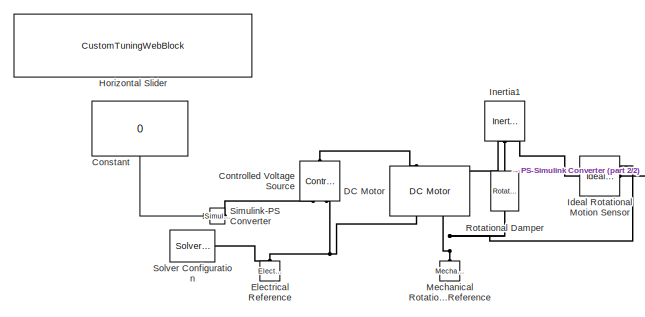
[diagram: root canvas - part 1/2, top left region]
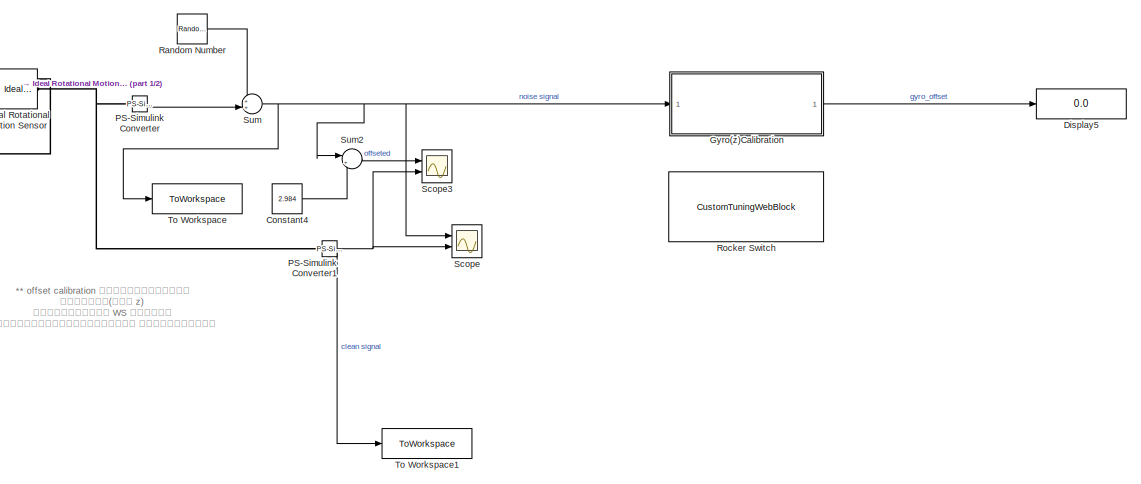
[diagram: root canvas - part 2/2, right side, full height]
MODEL slx_ea1697455849
KIND model
CONFIG AbsTol = auto
CONFIG EnableMultiTasking = off
CONFIG FixedStep = auto
CONFIG MaxStep = auto
CONFIG MinStep = auto
CONFIG RelTol = 1e-3
CONFIG SampleTimeConstraint = Unconstrained
CONFIG SolverName = VariableStepAuto
CONFIG StartTime = 0.0
CONFIG StopTime = 11
BLOCK [Constant] Constant
  NameLocation = left
  Value = 0
BLOCK [Constant] Constant4
  Value = 2.984
BLOCK [Reference] Controlled Voltage Source  REF=fl_lib/Electrical/Electrical Sources/Controlled Voltage
Source
  NameLocation = right
  Ports = [0, 0, 0, 0, 0, 1, 2]
  SourceBlock = fl_lib/Electrical/Electrical Sources/Controlled Voltage\nSource
  SourceProductBaseCode = SS
  SourceType = Controlled Voltage\nSource
BLOCK [Reference] DC Motor  REF=ee_lib/Electromechanical/Brushed Motors/DC Motor
  NameLocation = right
  Ports = [0, 0, 0, 0, 0, 2, 2]
  SourceBlock = ee_lib/Electromechanical/Brushed Motors/DC Motor
  SourceProductBaseCode = PS
  SourceType = DC Motor
BLOCK [Display] Display5
  Decimation = 1
  Ports = [1]
BLOCK [Reference] Electrical Reference  REF=fl_lib/Electrical/Electrical Elements/Electrical Reference
  NameLocation = right
  Ports = [0, 0, 0, 0, 0, 1]
  SourceBlock = fl_lib/Electrical/Electrical Elements/Electrical Reference
  SourceProductBaseCode = SS
  SourceType = Electrical Reference
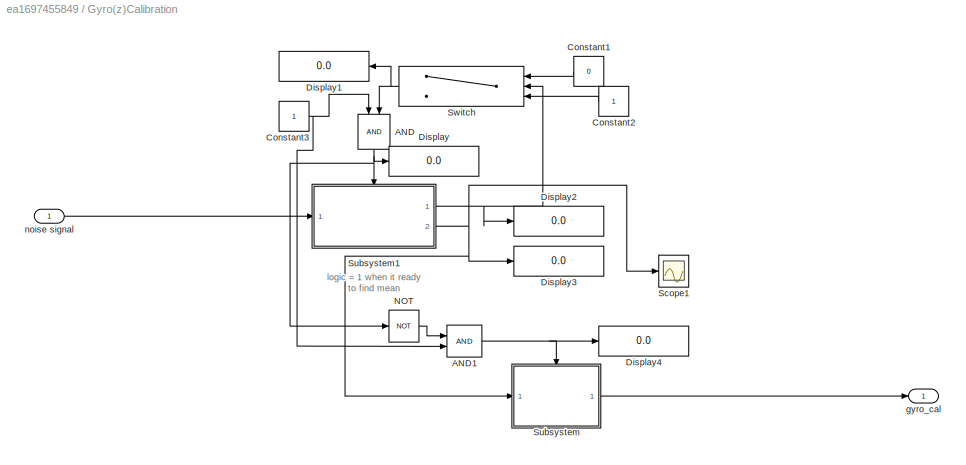
BLOCK [SubSystem] Gyro(z)Calibration
  Ports = [1, 1]
  RequestExecContextInheritance = off
BLOCK [Logic] Gyro(z)Calibration/AND
  AllPortsSameDT = off
  IconShape = distinctive
  NameLocation = left
  OutDataTypeStr = boolean
  Ports = [2, 1]
BLOCK [Logic] Gyro(z)Calibration/AND1
  AllPortsSameDT = off
  IconShape = distinctive
  OutDataTypeStr = boolean
  Ports = [2, 1]
BLOCK [Constant] Gyro(z)Calibration/Constant1
  NameLocation = top
  Value = 0
BLOCK [Constant] Gyro(z)Calibration/Constant2
  NameLocation = top
BLOCK [Constant] Gyro(z)Calibration/Constant3
BLOCK [Display] Gyro(z)Calibration/Display
  Decimation = 1
  Ports = [1]
BLOCK [Display] Gyro(z)Calibration/Display1
  Decimation = 1
  NameLocation = top
  Ports = [1]
BLOCK [Display] Gyro(z)Calibration/Display2
  Decimation = 1
  Ports = [1]
BLOCK [Display] Gyro(z)Calibration/Display3
  Decimation = 1
  Ports = [1]
BLOCK [Display] Gyro(z)Calibration/Display4
  Decimation = 1
  Ports = [1]
BLOCK [Logic] Gyro(z)Calibration/NOT
  AllPortsSameDT = off
  IconShape = distinctive
  Operator = NOT
  OutDataTypeStr = boolean
  Ports = [1, 1]
BLOCK [Scope] Gyro(z)Calibration/Scope1
  Floating = off
  NumInputPorts = 1
  Ports = [1]
  ScopeSpecificationString = Simulink.scopes.TimeScopeBlockCfg('CurrentConfiguration', extmgr.ConfigurationSet(extmgr.Configuration('Core','General UI',true),extmgr.Configuration('Core','Source UI',true),extmgr.Configuration('Sources','WiredSimulink',true,'DataLoggingVariableName','ScopeData1'),extmgr.Configuration('Visuals','Time Domain',true,'SerializedDisplays',{struct('MinYLimReal','-653.32347','MaxYLimReal','5879.9112','...<+1414ch>
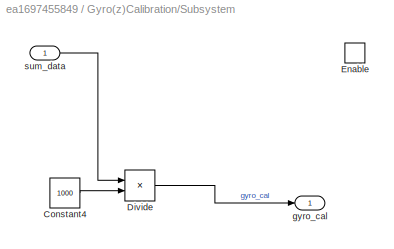
BLOCK [SubSystem] Gyro(z)Calibration/Subsystem
  Ports = [1, 1, 1]
  RequestExecContextInheritance = off
BLOCK [Constant] Gyro(z)Calibration/Subsystem/Constant4
  Value = 1000
BLOCK [Product] Gyro(z)Calibration/Subsystem/Divide
  Inputs = */
  Ports = [2, 1]
BLOCK [EnablePort] Gyro(z)Calibration/Subsystem/Enable
  Ports = []
BLOCK [Outport] Gyro(z)Calibration/Subsystem/gyro_cal
BLOCK [Inport] Gyro(z)Calibration/Subsystem/sum_data
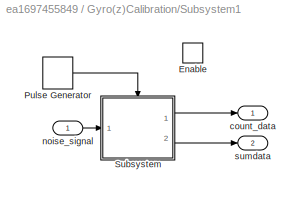
BLOCK [SubSystem] Gyro(z)Calibration/Subsystem1
  Ports = [1, 2, 1]
  RequestExecContextInheritance = off
BLOCK [EnablePort] Gyro(z)Calibration/Subsystem1/Enable
  Ports = []
BLOCK [DiscretePulseGenerator] Gyro(z)Calibration/Subsystem1/Pulse Generator
  Period = sampleT
  Ports = [0, 1]
  PulseType = Time based
  PulseWidth = 5
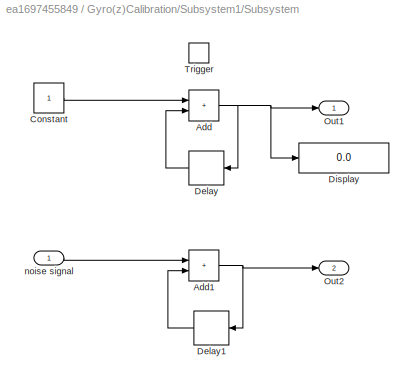
BLOCK [SubSystem] Gyro(z)Calibration/Subsystem1/Subsystem
  Ports = [1, 2, 0, 1]
  RequestExecContextInheritance = off
BLOCK [Sum] Gyro(z)Calibration/Subsystem1/Subsystem/Add
  IconShape = rectangular
  Ports = [2, 1]
BLOCK [Sum] Gyro(z)Calibration/Subsystem1/Subsystem/Add1
  IconShape = rectangular
  Ports = [2, 1]
BLOCK [Constant] Gyro(z)Calibration/Subsystem1/Subsystem/Constant
BLOCK [Delay] Gyro(z)Calibration/Subsystem1/Subsystem/Delay
  DelayLength = 1
  InputPortMap = u0
  NameLocation = top
  Ports = [1, 1]
BLOCK [Delay] Gyro(z)Calibration/Subsystem1/Subsystem/Delay1
  DelayLength = 1
  InputPortMap = u0
  NameLocation = top
  Ports = [1, 1]
BLOCK [Display] Gyro(z)Calibration/Subsystem1/Subsystem/Display
  Decimation = 1
  Ports = [1]
BLOCK [Outport] Gyro(z)Calibration/Subsystem1/Subsystem/Out1
BLOCK [Outport] Gyro(z)Calibration/Subsystem1/Subsystem/Out2
  Port = 2
BLOCK [TriggerPort] Gyro(z)Calibration/Subsystem1/Subsystem/Trigger
  PortDimensions = 1
  Ports = []
  StatesWhenEnabling = held
  VariantControl = (inherit)
BLOCK [Inport] Gyro(z)Calibration/Subsystem1/Subsystem/noise signal
BLOCK [Outport] Gyro(z)Calibration/Subsystem1/count_data
BLOCK [Inport] Gyro(z)Calibration/Subsystem1/noise_signal
BLOCK [Outport] Gyro(z)Calibration/Subsystem1/sumdata
  Port = 2
BLOCK [Switch] Gyro(z)Calibration/Switch
  InputSameDT = off
  NameLocation = top
  SaturateOnIntegerOverflow = off
  Threshold = cal_size
BLOCK [Outport] Gyro(z)Calibration/gyro_cal
BLOCK [Inport] Gyro(z)Calibration/noise signal
BLOCK [CustomTuningWebBlock] Horizontal Slider
  Configuration = {"components":[{"name":"LinearScaleComponent","settings":{"bounds":{"max":24,"min":0,"tickInterval":"auto"},"internalTickHeightScaleFactor":0.5,"labelColor":[255,255,200],"labelFont":{"font":"Arial","fontSize":12},"labelTransparency":1,"needleImage":{"size":[596,842],"src":"data:image\/svg+xml;base64,PD94bWwgdmVyc2lvbj0iMS4wIiBlbmNvZGluZz0idXRmLTgiPz4NCjwhLS0gR2VuZXJhdG9yOiBBZG9iZSBJbGx1c3RyYXRvci...<+5409ch>
  LabelPosition = Hide
  ShowInitialText = on
BLOCK [Reference] Ideal Rotational Motion Sensor  REF=fl_lib/Mechanical/Mechanical Sensors/Ideal Rotational
Motion Sensor
  Ports = [0, 0, 0, 0, 0, 1, 3]
  SourceBlock = fl_lib/Mechanical/Mechanical Sensors/Ideal Rotational\nMotion Sensor
  SourceProductBaseCode = SS
  SourceType = Ideal Rotational\nMotion Sensor
BLOCK [Reference] Inertia1  REF=fl_lib/Mechanical/Rotational Elements/Inertia
  NameLocation = left
  Ports = [0, 0, 0, 0, 0, 1]
  SourceBlock = fl_lib/Mechanical/Rotational Elements/Inertia
  SourceProductBaseCode = SS
  SourceType = Inertia
BLOCK [Reference] Mechanical Rotational Reference  REF=fl_lib/Mechanical/Rotational Elements/Mechanical
Rotational Reference
  NameLocation = right
  Ports = [0, 0, 0, 0, 0, 1]
  SourceBlock = fl_lib/Mechanical/Rotational Elements/Mechanical\nRotational Reference
  SourceProductBaseCode = SS
  SourceType = Mechanical\nRotational Reference
BLOCK [Reference] PS-Simulink Converter  REF=nesl_utility/PS-Simulink
Converter
  Ports = [0, 1, 0, 0, 0, 1]
  SourceBlock = nesl_utility/PS-Simulink\nConverter
  SourceProductBaseCode = PW,SS
  SourceType = PS-Simulink\nConverter
BLOCK [Reference] PS-Simulink Converter1  REF=nesl_utility/PS-Simulink
Converter
  NameLocation = left
  Ports = [0, 1, 0, 0, 0, 1]
  SourceBlock = nesl_utility/PS-Simulink\nConverter
  SourceProductBaseCode = PW,SS
  SourceType = PS-Simulink\nConverter
BLOCK [RandomNumber] Random Number
  Mean = 3
  SampleTime = 0.01
  Variance = 2
BLOCK [CustomTuningWebBlock] Rocker Switch
  Configuration = {"components":[{"name":"CustomSwitchStateComponent","settings":{"position":[0,0,1,1],"states":[{"HitRegion":{"position":[0,0,0.5,1]},"Image":{"position":[0.13,0,1,0.75],"size":[1,0.75],"src":"data:image\/svg+xml;base64,PHN2ZyB4bWxucz0iaHR0cDovL3d3dy53My5vcmcvMjAwMC9zdmciIHhtbG5zOnhsaW5rPSJodHRwOi8vd3d3LnczLm9yZy8xOTk5L3hsaW5rIiB2aWV3Qm94PSIwIDAgNzUgMjQuOCI+PGRlZnM+PHN0eWxlPi5jbHMtMXtmaWxsOnVybCgjc...<+8939ch>
  LabelPosition = Hide
  ShowInitialText = on
BLOCK [Reference] Rotational Damper  REF=sdl_lib/Couplings & Drives/Springs & Dampers/Rotational Damper
  NameLocation = left
  Ports = [0, 0, 0, 0, 0, 1, 1]
  SourceBlock = sdl_lib/Couplings & Drives/Springs & Dampers/Rotational Damper
  SourceProductBaseCode = LD
  SourceType = Rotational Damper
BLOCK [Scope] Scope
  Floating = off
  NumInputPorts = 2
  Ports = [2]
  ScopeSpecificationString = Simulink.scopes.TimeScopeBlockCfg('CurrentConfiguration', extmgr.ConfigurationSet(extmgr.Configuration('Core','General UI',true),extmgr.Configuration('Core','Source UI',true),extmgr.Configuration('Sources','WiredSimulink',true),extmgr.Configuration('Visuals','Time Domain',true,'SerializedDisplays',{struct('MinYLimReal','-2.29935','MaxYLimReal','9.14142','YLabelReal','','MinYLimMag','0.00000','MaxY...<+1419ch>
BLOCK [Scope] Scope3
  Floating = off
  NumInputPorts = 2
  Ports = [2]
  ScopeSpecificationString = Simulink.scopes.TimeScopeBlockCfg('CurrentConfiguration', extmgr.ConfigurationSet(extmgr.Configuration('Core','General UI',true),extmgr.Configuration('Core','Source UI',true),extmgr.Configuration('Sources','WiredSimulink',true,'DataLoggingVariableName','ScopeData3'),extmgr.Configuration('Visuals','Time Domain',true,'SerializedDisplays',{struct('MinYLimReal','-5.28335','MaxYLimReal','6.15742','YLab...<+1411ch>
BLOCK [Reference] Simulink-PS Converter  REF=nesl_utility/Simulink-PS
Converter
  Ports = [1, 0, 0, 0, 0, 0, 1]
  SourceBlock = nesl_utility/Simulink-PS\nConverter
  SourceProductBaseCode = PW,SS
  SourceType = Simulink-PS\nConverter
BLOCK [Reference] Solver Configuration  REF=nesl_utility/Solver
Configuration
  Ports = [0, 0, 0, 0, 0, 0, 1]
  SourceBlock = nesl_utility/Solver\nConfiguration
  SourceProductBaseCode = PW,SS
  SourceType = Solver\nConfiguration
BLOCK [Sum] Sum
  Inputs = ++|
  Ports = [2, 1]
BLOCK [Sum] Sum2
  Inputs = |+-
  Ports = [2, 1]
BLOCK [ToWorkspace] To Workspace
  Decimation = 3
  FixptAsFi = on
  MaxDataPoints = inf
  Ports = [1]
  SampleTime = -1
  SaveFormat = Timeseries
  VariableName = noise_signal
BLOCK [ToWorkspace] To Workspace1
  FixptAsFi = on
  MaxDataPoints = inf
  Ports = [1]
  SampleTime = -1
  SaveFormat = Timeseries
  VariableName = clean_signal
ANNOTATION (root): ** offset calibration ทำตอนหุ่นยนต์ ไม่หมุน(แกน z) ลองดึงค่าไป WS ดูแล้ว เอาค่าที่ใช้คำนวณเดิม คิดเทียบกัน
ANNOTATION Gyro(z)Calibration: logic = 1 when it ready to find mean
LINE Constant4:1 -> Sum2:2
LINE Constant:1 -> Simulink-PS Converter:1
NET Gyro(z)Calibration/AND1:1 -> Gyro(z)Calibration/Display4:1, Gyro(z)Calibration/Subsystem:enable
NET Gyro(z)Calibration/AND:1 -> Gyro(z)Calibration/Display:1, Gyro(z)Calibration/NOT:1, Gyro(z)Calibration/Subsystem1:enable
LINE Gyro(z)Calibration/Constant1:1 -> Gyro(z)Calibration/Switch:1
LINE Gyro(z)Calibration/Constant2:1 -> Gyro(z)Calibration/Switch:3
NET Gyro(z)Calibration/Constant3:1 -> Gyro(z)Calibration/AND1:2, Gyro(z)Calibration/AND:1
LINE Gyro(z)Calibration/NOT:1 -> Gyro(z)Calibration/AND1:1
LINE Gyro(z)Calibration/Subsystem/Constant4:1 -> Gyro(z)Calibration/Subsystem/Divide:2
LINE Gyro(z)Calibration/Subsystem/Divide:1 -> Gyro(z)Calibration/Subsystem/gyro_cal:1
LINE Gyro(z)Calibration/Subsystem/sum_data:1 -> Gyro(z)Calibration/Subsystem/Divide:1
LINE Gyro(z)Calibration/Subsystem1/Pulse Generator:1 -> Gyro(z)Calibration/Subsystem1/Subsystem:trigger
NET Gyro(z)Calibration/Subsystem1/Subsystem/Add1:1 -> Gyro(z)Calibration/Subsystem1/Subsystem/Delay1:1, Gyro(z)Calibration/Subsystem1/Subsystem/Out2:1
NET Gyro(z)Calibration/Subsystem1/Subsystem/Add:1 -> Gyro(z)Calibration/Subsystem1/Subsystem/Delay:1, Gyro(z)Calibration/Subsystem1/Subsystem/Display:1, Gyro(z)Calibration/Subsystem1/Subsystem/Out1:1
LINE Gyro(z)Calibration/Subsystem1/Subsystem/Constant:1 -> Gyro(z)Calibration/Subsystem1/Subsystem/Add:1
LINE Gyro(z)Calibration/Subsystem1/Subsystem/Delay1:1 -> Gyro(z)Calibration/Subsystem1/Subsystem/Add1:2
LINE Gyro(z)Calibration/Subsystem1/Subsystem/Delay:1 -> Gyro(z)Calibration/Subsystem1/Subsystem/Add:2
LINE Gyro(z)Calibration/Subsystem1/Subsystem/noise signal:1 -> Gyro(z)Calibration/Subsystem1/Subsystem/Add1:1
LINE Gyro(z)Calibration/Subsystem1/Subsystem:1 -> Gyro(z)Calibration/Subsystem1/count_data:1
LINE Gyro(z)Calibration/Subsystem1/Subsystem:2 -> Gyro(z)Calibration/Subsystem1/sumdata:1
LINE Gyro(z)Calibration/Subsystem1/noise_signal:1 -> Gyro(z)Calibration/Subsystem1/Subsystem:1
NET Gyro(z)Calibration/Subsystem1:1 -> Gyro(z)Calibration/Display2:1, Gyro(z)Calibration/Switch:2
NET Gyro(z)Calibration/Subsystem1:2 -> Gyro(z)Calibration/Display3:1, Gyro(z)Calibration/Scope1:1, Gyro(z)Calibration/Subsystem:1
LINE Gyro(z)Calibration/Subsystem:1 -> Gyro(z)Calibration/gyro_cal:1
NET Gyro(z)Calibration/Switch:1 -> Gyro(z)Calibration/AND:2, Gyro(z)Calibration/Display1:1
LINE Gyro(z)Calibration/noise signal:1 -> Gyro(z)Calibration/Subsystem1:1
LINE Gyro(z)Calibration:1 -> Display5:1
NET PS-Simulink Converter1:1 -> Scope3:2, Scope:2, To Workspace1:1
LINE PS-Simulink Converter:1 -> Sum:2
LINE Random Number:1 -> Sum:1
LINE Sum2:1 -> Scope3:1
NET Sum:1 -> Gyro(z)Calibration:1, Scope:1, Sum2:1, To Workspace:1
PLINE Controlled Voltage Source:LConn1 -- DC Motor:LConn1
PLINE Controlled Voltage Source:RConn1 -- Simulink-PS Converter:RConn1
PNET net1: Controlled Voltage Source:RConn2 -- DC Motor:RConn1 -- Electrical Reference:LConn1 -- Solver Configuration:RConn1
PNET net2: DC Motor:LConn2 -- Ideal Rotational Motion Sensor:LConn1 -- Inertia1:LConn1 -- Rotational Damper:LConn1
PNET net3: DC Motor:RConn2 -- Ideal Rotational Motion Sensor:RConn1 -- Mechanical Rotational Reference:LConn1 -- Rotational Damper:RConn1
PNET net4: Ideal Rotational Motion Sensor:RConn2 -- PS-Simulink Converter1:LConn1 -- PS-Simulink Converter:LConn1
note: NET lines group one-source signal fan-out (src -> all destinations, sorted); 1:1 wires keep LINE; PNET lines group multi-terminal physical nets as a canonical sorted terminal list (undirected conserving connections); 2-terminal nets keep the pairwise PLINE form
